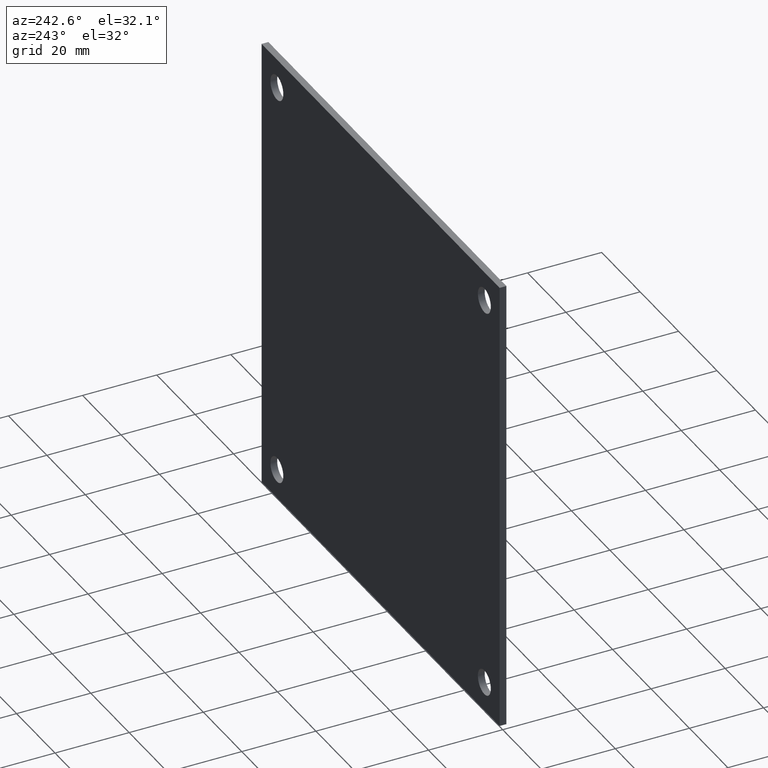
[diagram: clean part render]
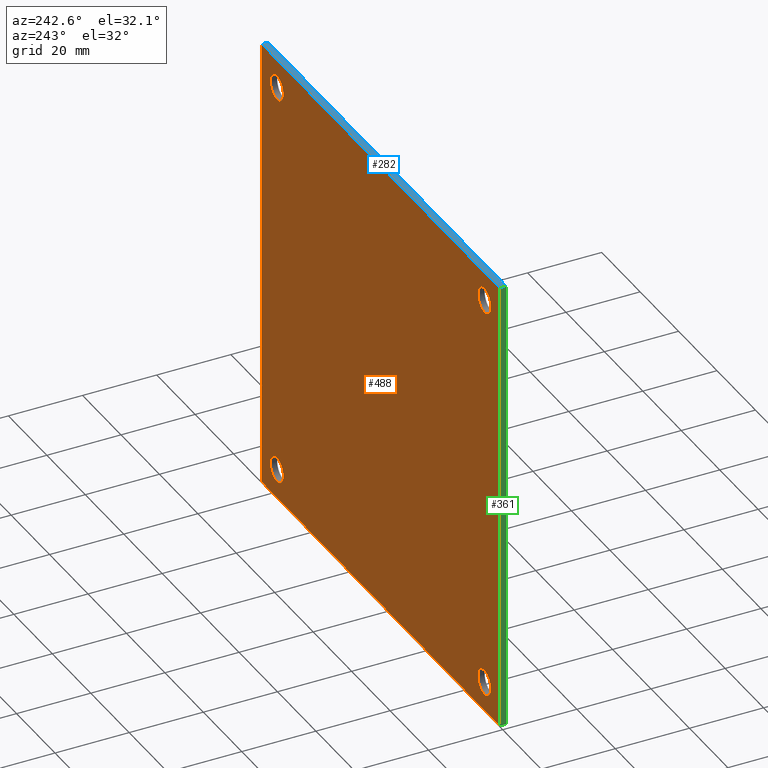
[diagram: same view with three faces highlighted in distinct colors, each labeled with its STEP entity id]
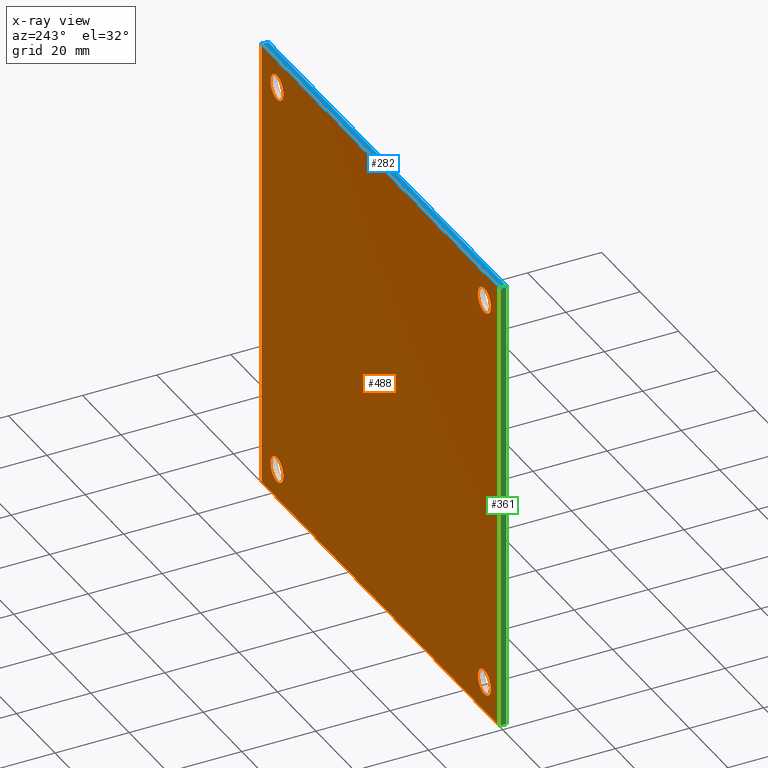
[diagram: x-ray of the same camera — body ghosted, the three highlighted faces saturated]
A machine part, auxiliary view with three faces highlighted in distinct colors.
The next image is the same camera in x-ray (body ghosted, the three faces saturated) — at least one of them is partly hidden behind the body in this view.
Their STEP definitions:

[orange] entity #488 — the highlighted planar face has unit normal (0, -1, 0).
#10 = FACE_BOUND ( 'NONE', #150, .T. ) ;
#13 = DIRECTION ( 'NONE',  ( -0.0000000000000000000, -0.0000000000000000000, -1.000000000000000000 ) ) ;
#14 = EDGE_CURVE ( 'NONE', #444, #444, #276, .T. ) ;
#24 = CARTESIAN_POINT ( 'NONE',  ( -2.125000000000000000, 0.07199999999999967537, -2.125000000000000000 ) ) ;
#30 = DIRECTION ( 'NONE',  ( 0.0000000000000000000, -1.000000000000000000, 0.0000000000000000000 ) ) ;
#35 = EDGE_CURVE ( 'NONE', #79, #79, #363, .T. ) ;
#42 = FACE_BOUND ( 'NONE', #164, .T. ) ;
#44 = CARTESIAN_POINT ( 'NONE',  ( 2.437500000000000000, 0.07200000000000000844, -2.437500000000000444 ) ) ;
#45 = EDGE_LOOP ( 'NONE', ( #189 ) ) ;
#50 = ORIENTED_EDGE ( 'NONE', *, *, #70, .F. ) ;
#53 = EDGE_CURVE ( 'NONE', #478, #478, #321, .T. ) ;
#57 = CARTESIAN_POINT ( 'NONE',  ( -2.437500000000000000, 0.07200000000000000844, -2.437500000000000000 ) ) ;
#61 = PLANE ( 'NONE',  #180 ) ;
#66 = VERTEX_POINT ( 'NONE', #69 ) ;
#69 = CARTESIAN_POINT ( 'NONE',  ( 2.437500000000000000, 0.07200000000000000844, 2.437500000000000000 ) ) ;
#70 = EDGE_CURVE ( 'NONE', #322, #151, #250, .T. ) ;
#72 = VERTEX_POINT ( 'NONE', #520 ) ;
#73 = LINE ( 'NONE', #327, #258 ) ;
#79 = VERTEX_POINT ( 'NONE', #343 ) ;
#89 = CARTESIAN_POINT ( 'NONE',  ( 2.437500000000000000, 0.07200000000000000844, 2.437500000000000000 ) ) ;
#93 = CARTESIAN_POINT ( 'NONE',  ( -2.437500000000000000, 0.07200000000000000844, 2.437500000000000000 ) ) ;
#118 = CARTESIAN_POINT ( 'NONE',  ( 2.125000000000000000, 0.07199999999999967537, -2.125000000000000000 ) ) ;
#120 = CARTESIAN_POINT ( 'NONE',  ( -2.125000000000000000, 0.07199999999999967537, 2.125000000000000000 ) ) ;
#141 = FACE_BOUND ( 'NONE', #191, .T. ) ;
#149 = LINE ( 'NONE', #381, #188 ) ;
#150 = EDGE_LOOP ( 'NONE', ( #181 ) ) ;
#151 = VERTEX_POINT ( 'NONE', #44 ) ;
#164 = EDGE_LOOP ( 'NONE', ( #209 ) ) ;
#170 = ORIENTED_EDGE ( 'NONE', *, *, #278, .F. ) ;
#180 = AXIS2_PLACEMENT_3D ( 'NONE', #428, #222, #307 ) ;
#181 = ORIENTED_EDGE ( 'NONE', *, *, #476, .T. ) ;
#188 = VECTOR ( 'NONE', #13, 39.37007874015748143 ) ;
#189 = ORIENTED_EDGE ( 'NONE', *, *, #14, .T. ) ;
#191 = EDGE_LOOP ( 'NONE', ( #269 ) ) ;
#193 = DIRECTION ( 'NONE',  ( 0.0000000000000000000, -1.000000000000000000, 0.0000000000000000000 ) ) ;
#194 = DIRECTION ( 'NONE',  ( 0.0000000000000000000, -1.000000000000000000, 0.0000000000000000000 ) ) ;
#199 = EDGE_CURVE ( 'NONE', #151, #66, #73, .T. ) ;
#209 = ORIENTED_EDGE ( 'NONE', *, *, #35, .T. ) ;
#211 = DIRECTION ( 'NONE',  ( -1.000000000000000000, -0.0000000000000000000, -1.120758151246879986E-16 ) ) ;
#220 = ORIENTED_EDGE ( 'NONE', *, *, #199, .F. ) ;
#222 = DIRECTION ( 'NONE',  ( 0.0000000000000000000, -1.000000000000000000, 0.0000000000000000000 ) ) ;
#231 = DIRECTION ( 'NONE',  ( 0.0000000000000000000, -1.000000000000000000, 0.0000000000000000000 ) ) ;
#233 = VERTEX_POINT ( 'NONE', #93 ) ;
#244 = ORIENTED_EDGE ( 'NONE', *, *, #288, .F. ) ;
#250 = LINE ( 'NONE', #392, #255 ) ;
#255 = VECTOR ( 'NONE', #353, 39.37007874015748143 ) ;
#258 = VECTOR ( 'NONE', #331, 39.37007874015748143 ) ;
#264 = AXIS2_PLACEMENT_3D ( 'NONE', #120, #30, #510 ) ;
#269 = ORIENTED_EDGE ( 'NONE', *, *, #53, .T. ) ;
#276 = CIRCLE ( 'NONE', #398, 0.1325000000000000344 ) ;
#278 = EDGE_CURVE ( 'NONE', #66, #233, #383, .T. ) ;
#288 = EDGE_CURVE ( 'NONE', #233, #322, #149, .T. ) ;
#294 = EDGE_LOOP ( 'NONE', ( #170, #220, #50, #244 ) ) ;
#295 = AXIS2_PLACEMENT_3D ( 'NONE', #118, #193, #477 ) ;
#303 = FACE_OUTER_BOUND ( 'NONE', #294, .T. ) ;
#307 = DIRECTION ( 'NONE',  ( 0.0000000000000000000, -0.0000000000000000000, -1.000000000000000000 ) ) ;
#315 = CARTESIAN_POINT ( 'NONE',  ( 2.125000000000000000, 0.07199999999999967537, 2.125000000000000000 ) ) ;
#321 = CIRCLE ( 'NONE', #295, 0.1325000000000000344 ) ;
#322 = VERTEX_POINT ( 'NONE', #57 ) ;
#327 = CARTESIAN_POINT ( 'NONE',  ( 2.437500000000000000, 0.07200000000000000844, -2.437500000000000000 ) ) ;
#331 = DIRECTION ( 'NONE',  ( -0.0000000000000000000, -0.0000000000000000000, 1.000000000000000000 ) ) ;
#343 = CARTESIAN_POINT ( 'NONE',  ( -2.125000000000000000, 0.07199999999999967537, 2.257500000000000284 ) ) ;
#353 = DIRECTION ( 'NONE',  ( 1.000000000000000000, -0.0000000000000000000, -1.120758151246879986E-16 ) ) ;
#363 = CIRCLE ( 'NONE', #264, 0.1325000000000000344 ) ;
#375 = AXIS2_PLACEMENT_3D ( 'NONE', #24, #231, #507 ) ;
#377 = FACE_BOUND ( 'NONE', #45, .T. ) ;
#381 = CARTESIAN_POINT ( 'NONE',  ( -2.437500000000000000, 0.07200000000000000844, 2.437500000000000000 ) ) ;
#383 = LINE ( 'NONE', #89, #524 ) ;
#385 = CARTESIAN_POINT ( 'NONE',  ( 2.125000000000000000, 0.07199999999999967537, -1.992500000000000160 ) ) ;
#392 = CARTESIAN_POINT ( 'NONE',  ( -2.437500000000000000, 0.07200000000000000844, -2.437500000000000000 ) ) ;
#398 = AXIS2_PLACEMENT_3D ( 'NONE', #315, #194, #474 ) ;
#428 = CARTESIAN_POINT ( 'NONE',  ( -2.437500000000000000, 0.07200000000000000844, -2.437500000000000000 ) ) ;
#444 = VERTEX_POINT ( 'NONE', #463 ) ;
#463 = CARTESIAN_POINT ( 'NONE',  ( 2.125000000000000000, 0.07199999999999967537, 2.257500000000000284 ) ) ;
#474 = DIRECTION ( 'NONE',  ( 0.0000000000000000000, 0.0000000000000000000, 1.000000000000000000 ) ) ;
#476 = EDGE_CURVE ( 'NONE', #72, #72, #513, .T. ) ;
#477 = DIRECTION ( 'NONE',  ( 0.0000000000000000000, 0.0000000000000000000, 1.000000000000000000 ) ) ;
#478 = VERTEX_POINT ( 'NONE', #385 ) ;
#488 = ADVANCED_FACE ( 'NONE', ( #303, #10, #42, #141, #377 ), #61, .F. ) ;
#507 = DIRECTION ( 'NONE',  ( 0.0000000000000000000, 0.0000000000000000000, 1.000000000000000000 ) ) ;
#510 = DIRECTION ( 'NONE',  ( 0.0000000000000000000, 0.0000000000000000000, 1.000000000000000000 ) ) ;
#513 = CIRCLE ( 'NONE', #375, 0.1325000000000000344 ) ;
#520 = CARTESIAN_POINT ( 'NONE',  ( -2.125000000000000000, 0.07199999999999967537, -1.992500000000000160 ) ) ;
#524 = VECTOR ( 'NONE', #211, 39.37007874015748143 ) ;

[blue] entity #282 — the highlighted planar face has unit normal (-0, 0, 1).
#7 = CARTESIAN_POINT ( 'NONE',  ( 2.437500000000000000, 0.07200000000000000844, 2.437500000000000000 ) ) ;
#11 = ORIENTED_EDGE ( 'NONE', *, *, #414, .T. ) ;
#59 = CARTESIAN_POINT ( 'NONE',  ( 2.437500000000000000, 0.0000000000000000000, 2.437500000000000000 ) ) ;
#66 = VERTEX_POINT ( 'NONE', #69 ) ;
#69 = CARTESIAN_POINT ( 'NONE',  ( 2.437500000000000000, 0.07200000000000000844, 2.437500000000000000 ) ) ;
#87 = AXIS2_PLACEMENT_3D ( 'NONE', #7, #176, #210 ) ;
#89 = CARTESIAN_POINT ( 'NONE',  ( 2.437500000000000000, 0.07200000000000000844, 2.437500000000000000 ) ) ;
#93 = CARTESIAN_POINT ( 'NONE',  ( -2.437500000000000000, 0.07200000000000000844, 2.437500000000000000 ) ) ;
#95 = VECTOR ( 'NONE', #177, 39.37007874015748143 ) ;
#104 = CARTESIAN_POINT ( 'NONE',  ( -2.437500000000000000, 0.07200000000000000844, 2.437499999999999556 ) ) ;
#133 = PLANE ( 'NONE',  #87 ) ;
#176 = DIRECTION ( 'NONE',  ( -1.120758151246879986E-16, 0.0000000000000000000, 1.000000000000000000 ) ) ;
#177 = DIRECTION ( 'NONE',  ( -1.000000000000000000, -0.0000000000000000000, -0.0000000000000000000 ) ) ;
#178 = VECTOR ( 'NONE', #301, 39.37007874015748143 ) ;
#210 = DIRECTION ( 'NONE',  ( 1.000000000000000000, 0.0000000000000000000, 1.120758151246879986E-16 ) ) ;
#211 = DIRECTION ( 'NONE',  ( -1.000000000000000000, -0.0000000000000000000, -1.120758151246879986E-16 ) ) ;
#233 = VERTEX_POINT ( 'NONE', #93 ) ;
#241 = EDGE_CURVE ( 'NONE', #352, #437, #274, .T. ) ;
#274 = LINE ( 'NONE', #412, #95 ) ;
#278 = EDGE_CURVE ( 'NONE', #66, #233, #383, .T. ) ;
#281 = LINE ( 'NONE', #333, #178 ) ;
#282 = ADVANCED_FACE ( 'NONE', ( #351 ), #133, .T. ) ;
#301 = DIRECTION ( 'NONE',  ( 0.0000000000000000000, 1.000000000000000000, -0.0000000000000000000 ) ) ;
#333 = CARTESIAN_POINT ( 'NONE',  ( 2.437500000000000000, 0.07200000000000000844, 2.437500000000000000 ) ) ;
#342 = CARTESIAN_POINT ( 'NONE',  ( -2.437500000000000000, 0.0000000000000000000, 2.437500000000000000 ) ) ;
#350 = LINE ( 'NONE', #104, #369 ) ;
#351 = FACE_OUTER_BOUND ( 'NONE', #379, .T. ) ;
#352 = VERTEX_POINT ( 'NONE', #59 ) ;
#368 = EDGE_CURVE ( 'NONE', #233, #437, #350, .T. ) ;
#369 = VECTOR ( 'NONE', #382, 39.37007874015748143 ) ;
#379 = EDGE_LOOP ( 'NONE', ( #508, #431, #416, #11 ) ) ;
#382 = DIRECTION ( 'NONE',  ( -0.0000000000000000000, -1.000000000000000000, 0.0000000000000000000 ) ) ;
#383 = LINE ( 'NONE', #89, #524 ) ;
#412 = CARTESIAN_POINT ( 'NONE',  ( -2.437500000000000000, 0.0000000000000000000, 2.437500000000000000 ) ) ;
#414 = EDGE_CURVE ( 'NONE', #352, #66, #281, .T. ) ;
#416 = ORIENTED_EDGE ( 'NONE', *, *, #241, .F. ) ;
#431 = ORIENTED_EDGE ( 'NONE', *, *, #368, .T. ) ;
#437 = VERTEX_POINT ( 'NONE', #342 ) ;
#508 = ORIENTED_EDGE ( 'NONE', *, *, #278, .T. ) ;
#524 = VECTOR ( 'NONE', #211, 39.37007874015748143 ) ;

[green] entity #361 — the highlighted planar face has unit normal (-1, 0, 0).
#6 = ORIENTED_EDGE ( 'NONE', *, *, #110, .F. ) ;
#13 = DIRECTION ( 'NONE',  ( -0.0000000000000000000, -0.0000000000000000000, -1.000000000000000000 ) ) ;
#49 = ORIENTED_EDGE ( 'NONE', *, *, #368, .F. ) ;
#57 = CARTESIAN_POINT ( 'NONE',  ( -2.437500000000000000, 0.07200000000000000844, -2.437500000000000000 ) ) ;
#88 = DIRECTION ( 'NONE',  ( 0.0000000000000000000, -0.0000000000000000000, -1.000000000000000000 ) ) ;
#93 = CARTESIAN_POINT ( 'NONE',  ( -2.437500000000000000, 0.07200000000000000844, 2.437500000000000000 ) ) ;
#102 = FACE_OUTER_BOUND ( 'NONE', #407, .T. ) ;
#104 = CARTESIAN_POINT ( 'NONE',  ( -2.437500000000000000, 0.07200000000000000844, 2.437499999999999556 ) ) ;
#110 = EDGE_CURVE ( 'NONE', #485, #322, #515, .T. ) ;
#142 = LINE ( 'NONE', #490, #457 ) ;
#143 = CARTESIAN_POINT ( 'NONE',  ( -2.437500000000000000, 0.07200000000000000844, 2.437500000000000000 ) ) ;
#149 = LINE ( 'NONE', #381, #188 ) ;
#165 = CARTESIAN_POINT ( 'NONE',  ( -2.437500000000000000, 0.07200000000000000844, -2.437500000000000000 ) ) ;
#188 = VECTOR ( 'NONE', #13, 39.37007874015748143 ) ;
#192 = CARTESIAN_POINT ( 'NONE',  ( -2.437500000000000000, 0.0000000000000000000, -2.437500000000000000 ) ) ;
#219 = PLANE ( 'NONE',  #254 ) ;
#233 = VERTEX_POINT ( 'NONE', #93 ) ;
#252 = EDGE_CURVE ( 'NONE', #437, #485, #142, .T. ) ;
#253 = DIRECTION ( 'NONE',  ( -1.000000000000000000, 0.0000000000000000000, 0.0000000000000000000 ) ) ;
#254 = AXIS2_PLACEMENT_3D ( 'NONE', #143, #253, #460 ) ;
#288 = EDGE_CURVE ( 'NONE', #233, #322, #149, .T. ) ;
#314 = VECTOR ( 'NONE', #365, 39.37007874015748143 ) ;
#322 = VERTEX_POINT ( 'NONE', #57 ) ;
#342 = CARTESIAN_POINT ( 'NONE',  ( -2.437500000000000000, 0.0000000000000000000, 2.437500000000000000 ) ) ;
#350 = LINE ( 'NONE', #104, #369 ) ;
#361 = ADVANCED_FACE ( 'NONE', ( #102 ), #219, .T. ) ;
#365 = DIRECTION ( 'NONE',  ( 0.0000000000000000000, 1.000000000000000000, 0.0000000000000000000 ) ) ;
#368 = EDGE_CURVE ( 'NONE', #233, #437, #350, .T. ) ;
#369 = VECTOR ( 'NONE', #382, 39.37007874015748143 ) ;
#381 = CARTESIAN_POINT ( 'NONE',  ( -2.437500000000000000, 0.07200000000000000844, 2.437500000000000000 ) ) ;
#382 = DIRECTION ( 'NONE',  ( -0.0000000000000000000, -1.000000000000000000, 0.0000000000000000000 ) ) ;
#407 = EDGE_LOOP ( 'NONE', ( #446, #6, #480, #49 ) ) ;
#437 = VERTEX_POINT ( 'NONE', #342 ) ;
#446 = ORIENTED_EDGE ( 'NONE', *, *, #288, .T. ) ;
#457 = VECTOR ( 'NONE', #88, 39.37007874015748143 ) ;
#460 = DIRECTION ( 'NONE',  ( 0.0000000000000000000, 0.0000000000000000000, 1.000000000000000000 ) ) ;
#480 = ORIENTED_EDGE ( 'NONE', *, *, #252, .F. ) ;
#485 = VERTEX_POINT ( 'NONE', #192 ) ;
#490 = CARTESIAN_POINT ( 'NONE',  ( -2.437500000000000000, 0.0000000000000000000, -2.437500000000000000 ) ) ;
#515 = LINE ( 'NONE', #165, #314 ) ;